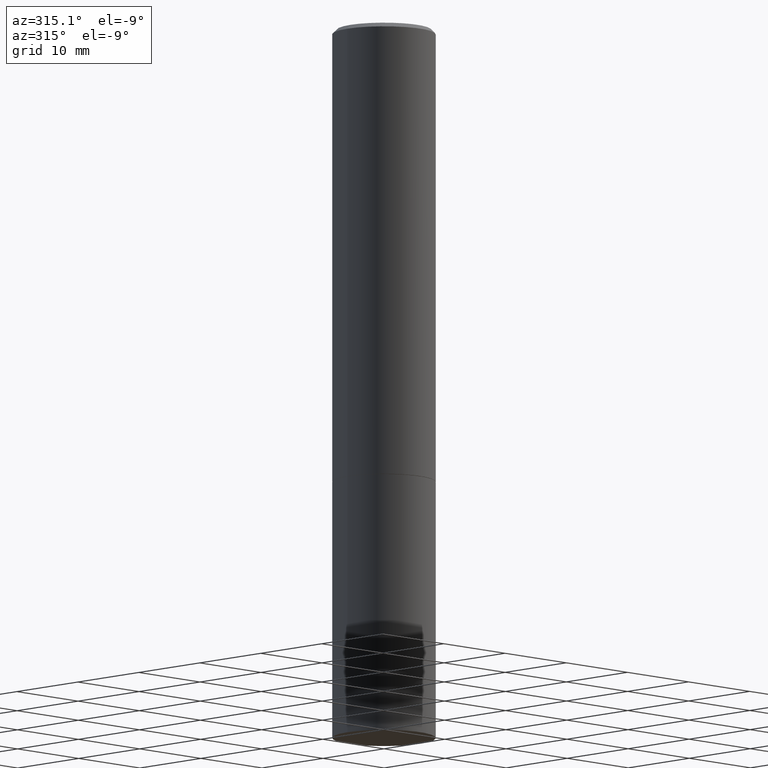
[diagram: clean part render]
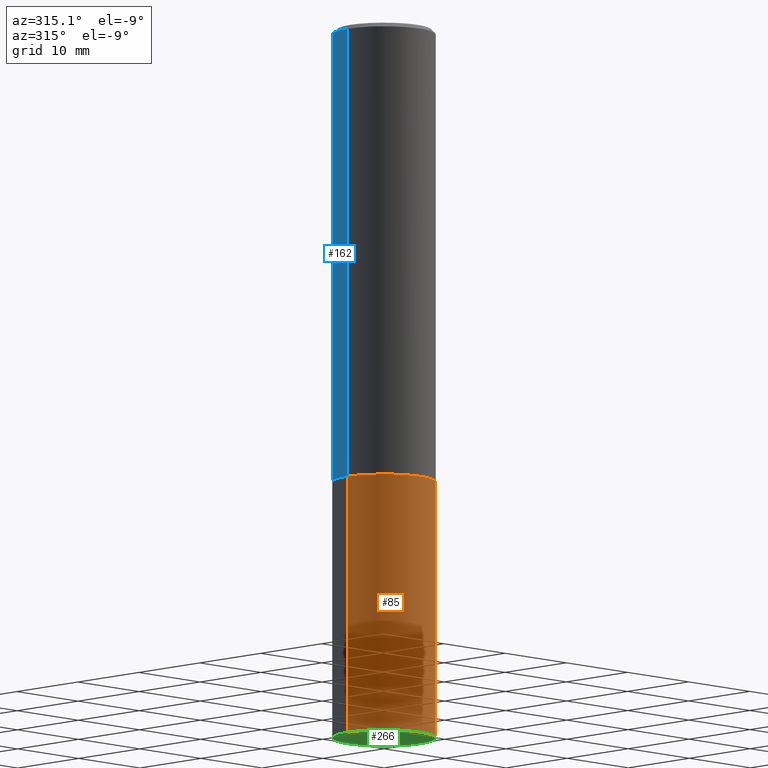
[diagram: same view with three faces highlighted in distinct colors, each labeled with its STEP entity id]
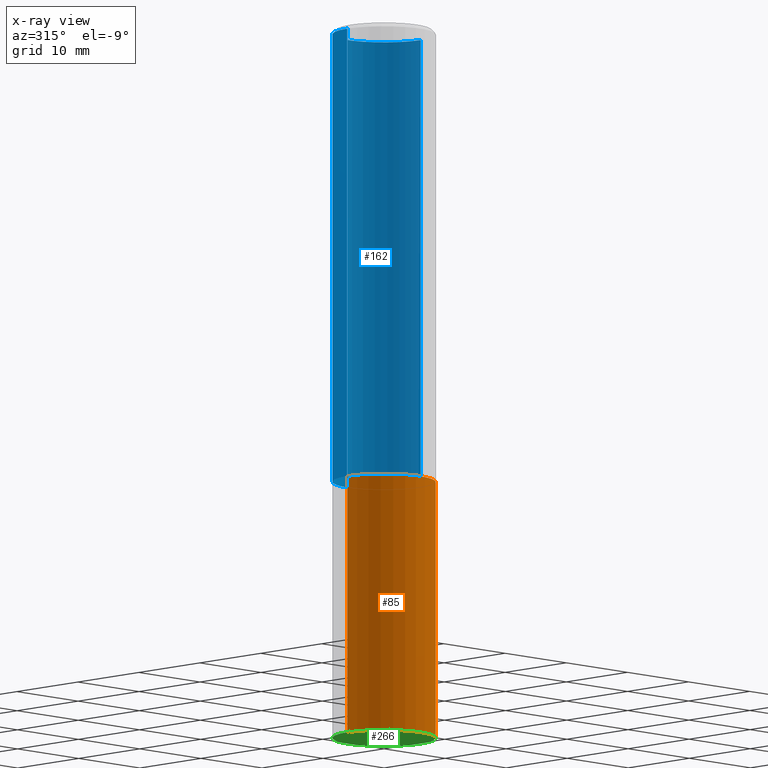
[diagram: x-ray of the same camera — body ghosted, the three highlighted faces saturated]
A machine part, auxiliary view with three faces highlighted in distinct colors.
The next image is the same camera in x-ray (body ghosted, the three faces saturated) — at least one of them is partly hidden behind the body in this view.
Their STEP definitions:

[orange] entity #85 — the highlighted cylindrical surface (partial cylindrical patch) has radius 5.9995 mm, axis along (-0, 0, 1).
#16 = EDGE_CURVE ( 'NONE', #168, #110, #140, .T. ) ;
#18 = EDGE_CURVE ( 'NONE', #110, #236, #253, .T. ) ;
#26 = AXIS2_PLACEMENT_3D ( 'NONE', #238, #207, #261 ) ;
#42 = CARTESIAN_POINT ( 'NONE',  ( -0.2361999999999999933, -7.668917324418570534E-15, -3.267700000000000049 ) ) ;
#44 = EDGE_CURVE ( 'NONE', #73, #236, #169, .T. ) ;
#54 = CARTESIAN_POINT ( 'NONE',  ( 5.102715210985906276E-29, -7.285324961630107416E-15, -2.086600000000000232 ) ) ;
#61 = EDGE_CURVE ( 'NONE', #168, #73, #220, .T. ) ;
#64 = CARTESIAN_POINT ( 'NONE',  ( -0.2361999999999999933, 1.678301941865356591E-15, -1.161852468318208757E-29 ) ) ;
#67 = DIRECTION ( 'NONE',  ( 1.000000000000000000, -6.982962677686265133E-15, 0.000000000000000000 ) ) ;
#73 = VERTEX_POINT ( 'NONE', #285 ) ;
#82 = DIRECTION ( 'NONE',  ( -2.445468806185136877E-29, 3.491481338843145188E-15, 1.000000000000000000 ) ) ;
#84 = CARTESIAN_POINT ( 'NONE',  ( -0.2361999999999999933, -7.668917324418570534E-15, -2.086600000000000232 ) ) ;
#85 = ADVANCED_FACE ( 'NONE', ( #179 ), #364, .T. ) ;
#91 = DIRECTION ( 'NONE',  ( -2.445468806185136597E-29, 3.491481338843145583E-15, 1.000000000000000000 ) ) ;
#109 = CARTESIAN_POINT ( 'NONE',  ( 7.991058417971171713E-29, -1.140911357093774644E-14, -3.267700000000000049 ) ) ;
#110 = VERTEX_POINT ( 'NONE', #84 ) ;
#134 = AXIS2_PLACEMENT_3D ( 'NONE', #109, #91, #67 ) ;
#139 = EDGE_LOOP ( 'NONE', ( #288, #351, #360, #260 ) ) ;
#140 = LINE ( 'NONE', #64, #287 ) ;
#168 = VERTEX_POINT ( 'NONE', #42 ) ;
#169 = LINE ( 'NONE', #340, #330 ) ;
#179 = FACE_OUTER_BOUND ( 'NONE', #139, .T. ) ;
#207 = DIRECTION ( 'NONE',  ( -2.445468806185136597E-29, 3.491481338843145583E-15, 1.000000000000000000 ) ) ;
#220 = CIRCLE ( 'NONE', #134, 0.2361999999999999933 ) ;
#234 = DIRECTION ( 'NONE',  ( 1.000000000000000000, -6.982962677686265133E-15, 0.000000000000000000 ) ) ;
#236 = VERTEX_POINT ( 'NONE', #309 ) ;
#238 = CARTESIAN_POINT ( 'NONE',  ( 0.000000000000000000, 0.000000000000000000, 0.000000000000000000 ) ) ;
#253 = CIRCLE ( 'NONE', #303, 0.2361999999999999933 ) ;
#260 = ORIENTED_EDGE ( 'NONE', *, *, #18, .F. ) ;
#261 = DIRECTION ( 'NONE',  ( 1.000000000000000000, -6.982962677686266711E-15, 4.876176775795936353E-29 ) ) ;
#285 = CARTESIAN_POINT ( 'NONE',  ( 0.2361999999999999933, -1.305848935540724297E-14, -3.267700000000000049 ) ) ;
#287 = VECTOR ( 'NONE', #334, 39.37007874015748143 ) ;
#288 = ORIENTED_EDGE ( 'NONE', *, *, #16, .F. ) ;
#293 = DIRECTION ( 'NONE',  ( -2.445468806185136597E-29, 3.491481338843145583E-15, 1.000000000000000000 ) ) ;
#303 = AXIS2_PLACEMENT_3D ( 'NONE', #54, #293, #234 ) ;
#309 = CARTESIAN_POINT ( 'NONE',  ( 0.2361999999999999933, -8.934700746099602364E-15, -2.086600000000000232 ) ) ;
#330 = VECTOR ( 'NONE', #82, 39.37007874015748143 ) ;
#334 = DIRECTION ( 'NONE',  ( -2.445468806185136877E-29, 3.491481338843145188E-15, 1.000000000000000000 ) ) ;
#340 = CARTESIAN_POINT ( 'NONE',  ( 0.2361999999999999933, -1.649375784469496131E-15, 1.151752954443000088E-29 ) ) ;
#351 = ORIENTED_EDGE ( 'NONE', *, *, #61, .T. ) ;
#360 = ORIENTED_EDGE ( 'NONE', *, *, #44, .T. ) ;
#364 = CYLINDRICAL_SURFACE ( 'NONE', #26, 0.2361999999999999933 ) ;

[blue] entity #162 — the highlighted cylindrical surface (partial cylindrical patch) has radius 5.9995 mm, axis along (-0, 0, 1).
#34 = DIRECTION ( 'NONE',  ( 1.000000000000000000, -6.982962677686266711E-15, 4.876176775795935793E-29 ) ) ;
#37 = DIRECTION ( 'NONE',  ( -2.445468806185136877E-29, 3.491481338843145188E-15, 1.000000000000000000 ) ) ;
#40 = ORIENTED_EDGE ( 'NONE', *, *, #190, .F. ) ;
#47 = AXIS2_PLACEMENT_3D ( 'NONE', #269, #86, #200 ) ;
#63 = DIRECTION ( 'NONE',  ( 1.000000000000000000, -6.982962677686264344E-15, 0.000000000000000000 ) ) ;
#75 = EDGE_CURVE ( 'NONE', #113, #171, #101, .T. ) ;
#86 = DIRECTION ( 'NONE',  ( -2.445468806185136597E-29, 3.491481338843145583E-15, 1.000000000000000000 ) ) ;
#90 = CARTESIAN_POINT ( 'NONE',  ( -0.2361999999999997990, 1.579546157692631649E-15, -0.02000000000000005940 ) ) ;
#97 = VECTOR ( 'NONE', #37, 39.37007874015748143 ) ;
#101 = CIRCLE ( 'NONE', #47, 0.2361999999999997990 ) ;
#105 = CARTESIAN_POINT ( 'NONE',  ( 0.2362000000000000210, -8.931209264760760934E-15, -2.085599999999999898 ) ) ;
#113 = VERTEX_POINT ( 'NONE', #312 ) ;
#115 = DIRECTION ( 'NONE',  ( -2.445468806185136597E-29, 3.491481338843145583E-15, 1.000000000000000000 ) ) ;
#143 = CYLINDRICAL_SURFACE ( 'NONE', #160, 0.2361999999999999378 ) ;
#151 = DIRECTION ( 'NONE',  ( -2.445468806185136877E-29, 3.491481338843145188E-15, 1.000000000000000000 ) ) ;
#159 = EDGE_CURVE ( 'NONE', #232, #171, #185, .T. ) ;
#160 = AXIS2_PLACEMENT_3D ( 'NONE', #301, #115, #34 ) ;
#162 = ADVANCED_FACE ( 'NONE', ( #339 ), #143, .T. ) ;
#171 = VERTEX_POINT ( 'NONE', #90 ) ;
#183 = LINE ( 'NONE', #366, #225 ) ;
#185 = LINE ( 'NONE', #322, #97 ) ;
#190 = EDGE_CURVE ( 'NONE', #314, #113, #183, .T. ) ;
#195 = CARTESIAN_POINT ( 'NONE',  ( -0.2362000000000000210, -1.997529611668705882E-15, -2.085599999999999898 ) ) ;
#196 = ORIENTED_EDGE ( 'NONE', *, *, #75, .F. ) ;
#200 = DIRECTION ( 'NONE',  ( 1.000000000000000000, -6.982962677686266711E-15, 0.000000000000000000 ) ) ;
#202 = EDGE_CURVE ( 'NONE', #314, #232, #361, .T. ) ;
#206 = CARTESIAN_POINT ( 'NONE',  ( 5.100269742179720673E-29, -7.281833480291264409E-15, -2.085599999999999898 ) ) ;
#225 = VECTOR ( 'NONE', #151, 39.37007874015748143 ) ;
#232 = VERTEX_POINT ( 'NONE', #195 ) ;
#263 = ORIENTED_EDGE ( 'NONE', *, *, #202, .T. ) ;
#269 = CARTESIAN_POINT ( 'NONE',  ( 4.890937612370288047E-31, -6.982962677686311331E-17, -0.02000000000000005940 ) ) ;
#274 = AXIS2_PLACEMENT_3D ( 'NONE', #206, #317, #63 ) ;
#291 = ORIENTED_EDGE ( 'NONE', *, *, #159, .T. ) ;
#301 = CARTESIAN_POINT ( 'NONE',  ( 0.000000000000000000, 0.000000000000000000, 0.000000000000000000 ) ) ;
#302 = EDGE_LOOP ( 'NONE', ( #263, #291, #196, #40 ) ) ;
#312 = CARTESIAN_POINT ( 'NONE',  ( 0.2361999999999997990, -1.690279253850497391E-15, -0.02000000000000005940 ) ) ;
#314 = VERTEX_POINT ( 'NONE', #105 ) ;
#317 = DIRECTION ( 'NONE',  ( -2.445468806185136597E-29, 3.491481338843145583E-15, 1.000000000000000000 ) ) ;
#322 = CARTESIAN_POINT ( 'NONE',  ( -0.2361999999999999378, 1.678301941865356197E-15, -1.161852468318208476E-29 ) ) ;
#339 = FACE_OUTER_BOUND ( 'NONE', #302, .T. ) ;
#361 = CIRCLE ( 'NONE', #274, 0.2362000000000000210 ) ;
#366 = CARTESIAN_POINT ( 'NONE',  ( 0.2361999999999999378, -1.649375784469495736E-15, 1.151752954442999668E-29 ) ) ;

[green] entity #266 — the highlighted planar face has unit normal (0, -0, -1).
#7 = DIRECTION ( 'NONE',  ( -2.445468806185136597E-29, 3.491481338843145583E-15, 1.000000000000000000 ) ) ;
#23 = DIRECTION ( 'NONE',  ( 2.438088387897960049E-29, -3.491481338843145188E-15, -1.000000000000000000 ) ) ;
#42 = CARTESIAN_POINT ( 'NONE',  ( -0.2361999999999999933, -7.668917324418570534E-15, -3.267700000000000049 ) ) ;
#60 = CARTESIAN_POINT ( 'NONE',  ( 7.991058417971171713E-29, -1.140911357093774644E-14, -3.267700000000000049 ) ) ;
#61 = EDGE_CURVE ( 'NONE', #168, #73, #220, .T. ) ;
#67 = DIRECTION ( 'NONE',  ( 1.000000000000000000, -6.982962677686265133E-15, 0.000000000000000000 ) ) ;
#72 = DIRECTION ( 'NONE',  ( 1.000000000000000000, -6.982962677686265133E-15, 0.000000000000000000 ) ) ;
#73 = VERTEX_POINT ( 'NONE', #285 ) ;
#91 = DIRECTION ( 'NONE',  ( -2.445468806185136597E-29, 3.491481338843145583E-15, 1.000000000000000000 ) ) ;
#108 = AXIS2_PLACEMENT_3D ( 'NONE', #60, #7, #72 ) ;
#109 = CARTESIAN_POINT ( 'NONE',  ( 7.991058417971171713E-29, -1.140911357093774644E-14, -3.267700000000000049 ) ) ;
#132 = DIRECTION ( 'NONE',  ( -1.000000000000000000, 6.982962677686265922E-15, -4.876176775795935793E-29 ) ) ;
#134 = AXIS2_PLACEMENT_3D ( 'NONE', #109, #91, #67 ) ;
#150 = EDGE_CURVE ( 'NONE', #73, #168, #256, .T. ) ;
#166 = FACE_OUTER_BOUND ( 'NONE', #308, .T. ) ;
#168 = VERTEX_POINT ( 'NONE', #42 ) ;
#173 = AXIS2_PLACEMENT_3D ( 'NONE', #281, #23, #132 ) ;
#186 = ORIENTED_EDGE ( 'NONE', *, *, #150, .F. ) ;
#220 = CIRCLE ( 'NONE', #134, 0.2361999999999999933 ) ;
#222 = PLANE ( 'NONE',  #173 ) ;
#256 = CIRCLE ( 'NONE', #108, 0.2361999999999999933 ) ;
#266 = ADVANCED_FACE ( 'NONE', ( #166 ), #222, .T. ) ;
#281 = CARTESIAN_POINT ( 'NONE',  ( 1.649375784469575806E-15, 0.2361999999999885858, -3.267700000000001381 ) ) ;
#285 = CARTESIAN_POINT ( 'NONE',  ( 0.2361999999999999933, -1.305848935540724297E-14, -3.267700000000000049 ) ) ;
#308 = EDGE_LOOP ( 'NONE', ( #186, #321 ) ) ;
#321 = ORIENTED_EDGE ( 'NONE', *, *, #61, .F. ) ;